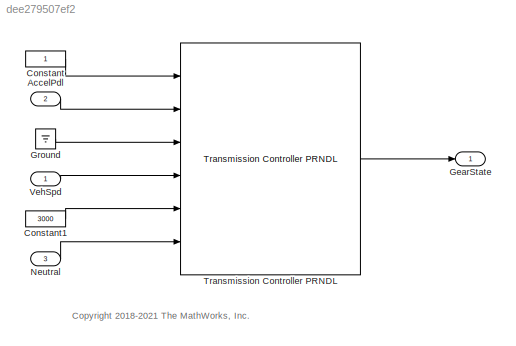
MODEL slx_dee279507ef2
KIND model
CONFIG AbsTol = auto
CONFIG EnableMultiTasking = on
CONFIG FixedStep = 0.01
CONFIG MaxStep = auto
CONFIG MinStep = auto
CONFIG RelTol = 1e-3
CONFIG SampleTimeConstraint = Unconstrained
CONFIG SolverName = FixedStepDiscrete
CONFIG StartTime = 0.0
CONFIG StopTime = inf
WORKSPACE source: mxarray member
WORKSPACE Dn_Shft_Spd: Simulink.Parameter (value not decoded)
WORKSPACE Pdl_Pos_Dn_bpt: Simulink.Parameter (value not decoded)
WORKSPACE Pdl_Pos_Up_bpt: Simulink.Parameter (value not decoded)
WORKSPACE Up_Shft_Spd: Simulink.Parameter (value not decoded)
BLOCK [Inport] AccelPdl
  OutDataTypeStr = double
  Port = 2
  PortDimensions = 1
  SamplingMode = Sample based
  SignalType = real
BLOCK [Constant] Constant
BLOCK [Constant] Constant1
  Value = 3000
BLOCK [Outport] GearState
  VectorParamsAs1DForOutWhenUnconnected = off
BLOCK [Ground] Ground
BLOCK [Inport] Neutral
  Port = 3
  SamplingMode = Sample based
  SignalType = real
BLOCK [Reference] Transmission Controller PRNDL  REF=autolibtranscontrolscommon/Transmission Controller PRNDL
  Ports = [6, 1]
  SourceBlock = autolibtranscontrolscommon/Transmission Controller PRNDL
  SourceProductBaseCode = PW,DR,MT,VE
  SourceType = Transmission Controller PRNDL
BLOCK [Inport] VehSpd
  OutDataTypeStr = double
  PortDimensions = 1
  SamplingMode = Sample based
  SignalType = real
  Unit = m/s
ANNOTATION (root): <copyright redacted>
LINE AccelPdl:1 -> Transmission Controller PRNDL:2
LINE Constant1:1 -> Transmission Controller PRNDL:5
LINE Constant:1 -> Transmission Controller PRNDL:1
LINE Ground:1 -> Transmission Controller PRNDL:3
LINE Neutral:1 -> Transmission Controller PRNDL:6
LINE Transmission Controller PRNDL:1 -> GearState:1
LINE VehSpd:1 -> Transmission Controller PRNDL:4
